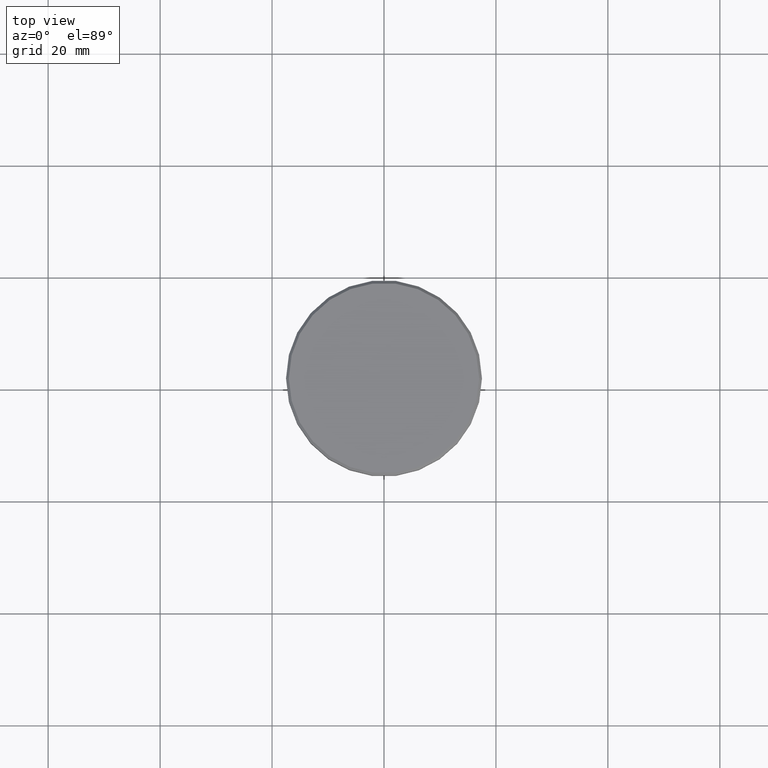
[diagram: clean part render]
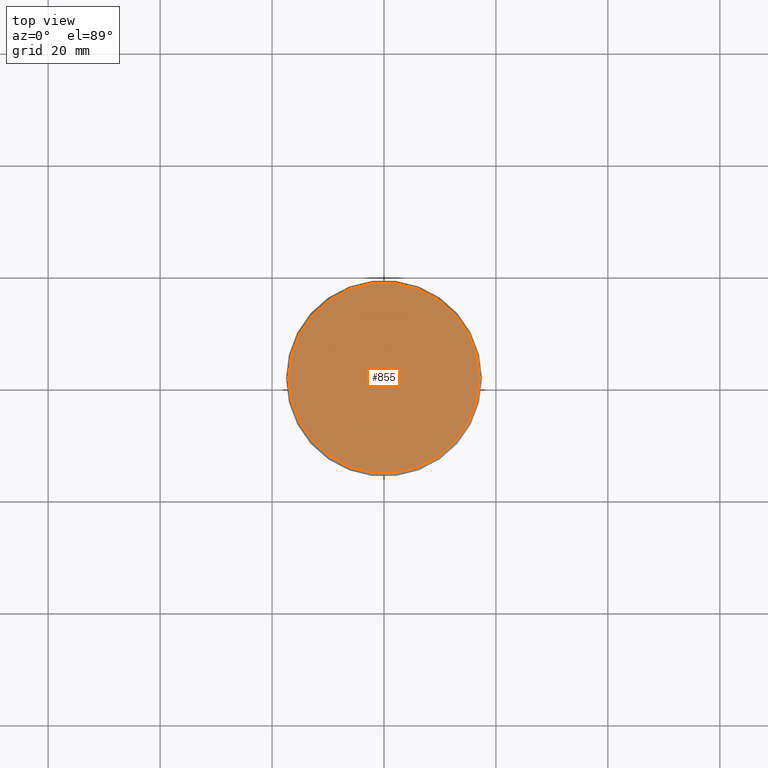
[diagram: same view with one face highlighted and labeled with its STEP entity id]
A machine part, top view. The second image highlights one B-rep face of the part: STEP entity #855.
In plain terms, the highlighted planar face has unit normal (0, -0, 1).
Its self-contained STEP definition (entity closure, byte-faithful):
#85 = DIRECTION ( 'NONE',  ( 1.000000000000000000, 0.000000000000000000, 0.000000000000000000 ) ) ;
#122 = FACE_OUTER_BOUND ( 'NONE', #623, .T. ) ;
#151 = CARTESIAN_POINT ( 'NONE',  ( -17.00000000000002842, 0.000000000000000000, 0.000000000000000000 ) ) ;
#157 = ORIENTED_EDGE ( 'NONE', *, *, #303, .T. ) ;
#286 = VERTEX_POINT ( 'NONE', #151 ) ;
#303 = EDGE_CURVE ( 'NONE', #510, #286, #601, .T. ) ;
#306 = CARTESIAN_POINT ( 'NONE',  ( 0.000000000000000000, 0.000000000000000000, 0.000000000000000000 ) ) ;
#352 = CARTESIAN_POINT ( 'NONE',  ( 0.000000000000000000, 0.000000000000000000, 0.000000000000000000 ) ) ;
#363 = CARTESIAN_POINT ( 'NONE',  ( 0.000000000000000000, 0.000000000000000000, 0.000000000000000000 ) ) ;
#394 = CIRCLE ( 'NONE', #797, 17.00000000000002842 ) ;
#510 = VERTEX_POINT ( 'NONE', #972 ) ;
#527 = AXIS2_PLACEMENT_3D ( 'NONE', #306, #675, #1036 ) ;
#533 = DIRECTION ( 'NONE',  ( -0.000000000000000000, -0.000000000000000000, 1.000000000000000000 ) ) ;
#601 = CIRCLE ( 'NONE', #848, 17.00000000000002842 ) ;
#623 = EDGE_LOOP ( 'NONE', ( #711, #157 ) ) ;
#675 = DIRECTION ( 'NONE',  ( 0.000000000000000000, -0.000000000000000000, 1.000000000000000000 ) ) ;
#711 = ORIENTED_EDGE ( 'NONE', *, *, #1072, .T. ) ;
#720 = DIRECTION ( 'NONE',  ( -0.000000000000000000, -0.000000000000000000, 1.000000000000000000 ) ) ;
#797 = AXIS2_PLACEMENT_3D ( 'NONE', #363, #533, #85 ) ;
#848 = AXIS2_PLACEMENT_3D ( 'NONE', #352, #720, #1079 ) ;
#853 = PLANE ( 'NONE',  #527 ) ;
#855 = ADVANCED_FACE ( 'NONE', ( #122 ), #853, .T. ) ;
#972 = CARTESIAN_POINT ( 'NONE',  ( 17.00000000000002842, 2.112515728529186039E-15, 0.000000000000000000 ) ) ;
#1036 = DIRECTION ( 'NONE',  ( 1.000000000000000000, 0.000000000000000000, 0.000000000000000000 ) ) ;
#1072 = EDGE_CURVE ( 'NONE', #286, #510, #394, .T. ) ;
#1079 = DIRECTION ( 'NONE',  ( 1.000000000000000000, 0.000000000000000000, 0.000000000000000000 ) ) ;